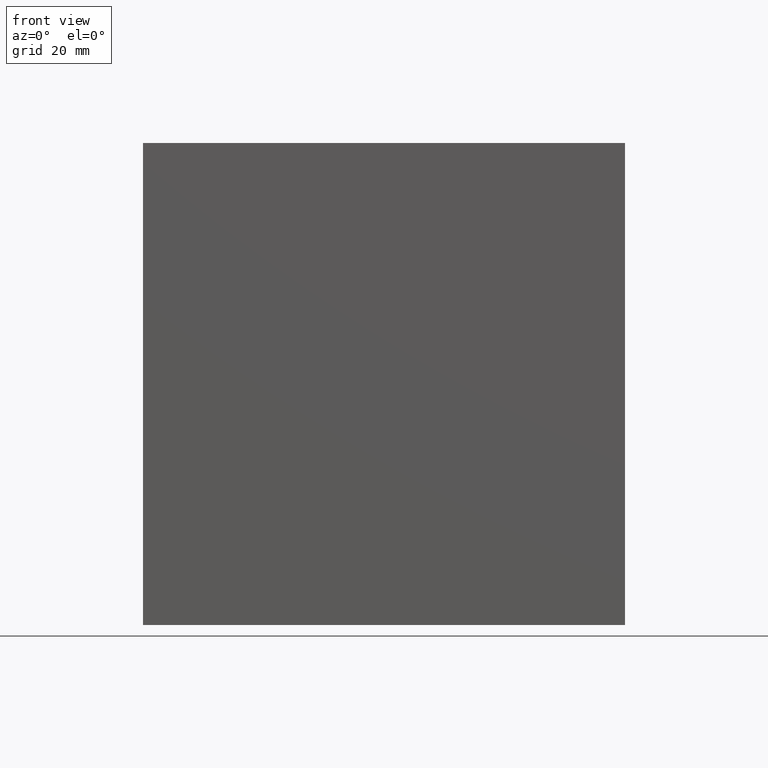
[diagram: clean part render]
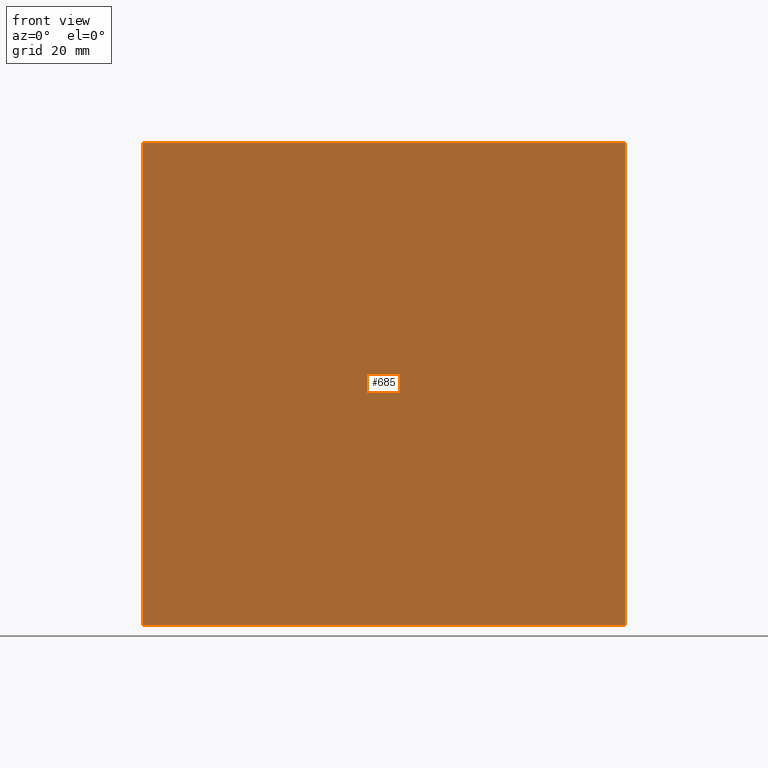
[diagram: same view with one face highlighted and labeled with its STEP entity id]
A machine part, front view. The second image highlights one B-rep face of the part: STEP entity #685.
In plain terms, the highlighted planar face has unit normal (0, 1, 0).
Its self-contained STEP definition (entity closure, byte-faithful):
#21 = CARTESIAN_POINT ( 'NONE',  ( -50.00000000000006395, -27.50000000001205436, -50.00000000000000000 ) ) ;
#39 = CARTESIAN_POINT ( 'NONE',  ( 50.00000000000004974, -27.50000000001205436, -50.00000000000000000 ) ) ;
#122 = CARTESIAN_POINT ( 'NONE',  ( -50.00000000000006395, -27.50000000001205436, 50.00000000000000000 ) ) ;
#132 = DIRECTION ( 'NONE',  ( 1.000000000000000000, 0.0000000000000000000, 0.0000000000000000000 ) ) ;
#153 = DIRECTION ( 'NONE',  ( -0.0000000000000000000, -0.0000000000000000000, -1.000000000000000000 ) ) ;
#222 = VECTOR ( 'NONE', #1152, 1000.000000000000000 ) ;
#230 = FACE_OUTER_BOUND ( 'NONE', #491, .T. ) ;
#234 = LINE ( 'NONE', #693, #222 ) ;
#237 = VECTOR ( 'NONE', #153, 1000.000000000000000 ) ;
#247 = LINE ( 'NONE', #122, #250 ) ;
#250 = VECTOR ( 'NONE', #132, 1000.000000000000000 ) ;
#257 = LINE ( 'NONE', #969, #237 ) ;
#262 = CARTESIAN_POINT ( 'NONE',  ( -50.00000000000006395, -27.50000000001205436, 50.00000000000000000 ) ) ;
#298 = DIRECTION ( 'NONE',  ( -0.0000000000000000000, -0.0000000000000000000, -1.000000000000000000 ) ) ;
#333 = EDGE_CURVE ( 'NONE', #689, #599, #695, .T. ) ;
#405 = ORIENTED_EDGE ( 'NONE', *, *, #653, .F. ) ;
#491 = EDGE_LOOP ( 'NONE', ( #1063, #564, #405, #645 ) ) ;
#495 = AXIS2_PLACEMENT_3D ( 'NONE', #529, #548, #549 ) ;
#529 = CARTESIAN_POINT ( 'NONE',  ( 1.040834085586084257E-13, -27.50000000001205436, 50.00000000000000000 ) ) ;
#543 = PLANE ( 'NONE',  #495 ) ;
#548 = DIRECTION ( 'NONE',  ( 0.0000000000000000000, 1.000000000000000000, 0.0000000000000000000 ) ) ;
#549 = DIRECTION ( 'NONE',  ( 0.0000000000000000000, -0.0000000000000000000, 1.000000000000000000 ) ) ;
#556 = CARTESIAN_POINT ( 'NONE',  ( -50.00000000000006395, -27.50000000001205436, 50.00000000000000000 ) ) ;
#564 = ORIENTED_EDGE ( 'NONE', *, *, #654, .F. ) ;
#568 = CARTESIAN_POINT ( 'NONE',  ( 50.00000000000004974, -27.50000000001205436, 50.00000000000000000 ) ) ;
#599 = VERTEX_POINT ( 'NONE', #21 ) ;
#608 = VERTEX_POINT ( 'NONE', #39 ) ;
#645 = ORIENTED_EDGE ( 'NONE', *, *, #333, .T. ) ;
#650 = VECTOR ( 'NONE', #298, 1000.000000000000000 ) ;
#653 = EDGE_CURVE ( 'NONE', #689, #699, #247, .T. ) ;
#654 = EDGE_CURVE ( 'NONE', #699, #608, #257, .T. ) ;
#668 = EDGE_CURVE ( 'NONE', #599, #608, #234, .T. ) ;
#685 = ADVANCED_FACE ( 'NONE', ( #230 ), #543, .F. ) ;
#689 = VERTEX_POINT ( 'NONE', #556 ) ;
#693 = CARTESIAN_POINT ( 'NONE',  ( 1.040834085586084257E-13, -27.50000000001205436, -50.00000000000000000 ) ) ;
#695 = LINE ( 'NONE', #262, #650 ) ;
#699 = VERTEX_POINT ( 'NONE', #568 ) ;
#969 = CARTESIAN_POINT ( 'NONE',  ( 50.00000000000004974, -27.50000000001205436, 50.00000000000000000 ) ) ;
#1063 = ORIENTED_EDGE ( 'NONE', *, *, #668, .T. ) ;
#1152 = DIRECTION ( 'NONE',  ( 1.000000000000000000, 0.0000000000000000000, 0.0000000000000000000 ) ) ;